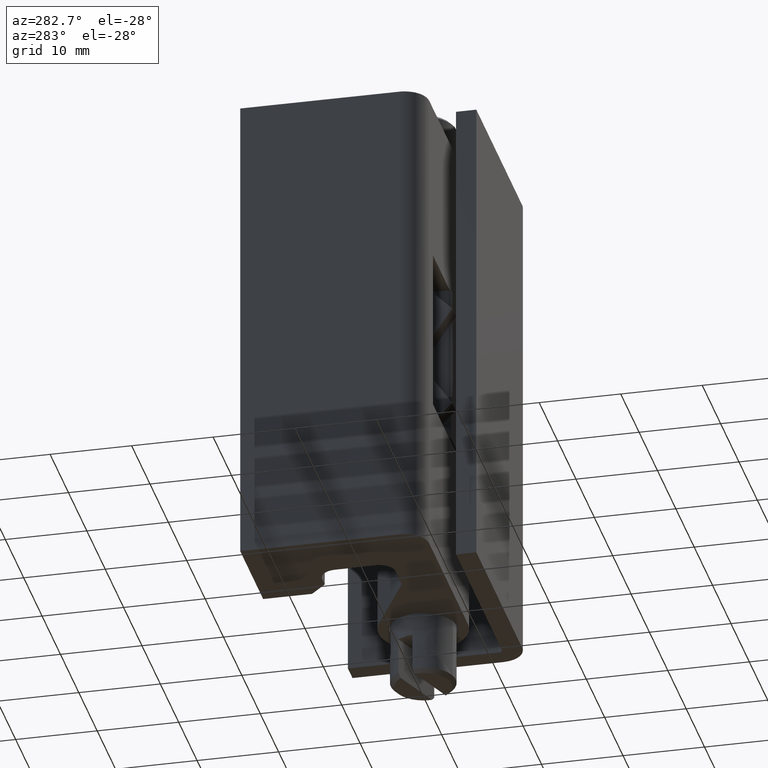
[diagram: clean part render]
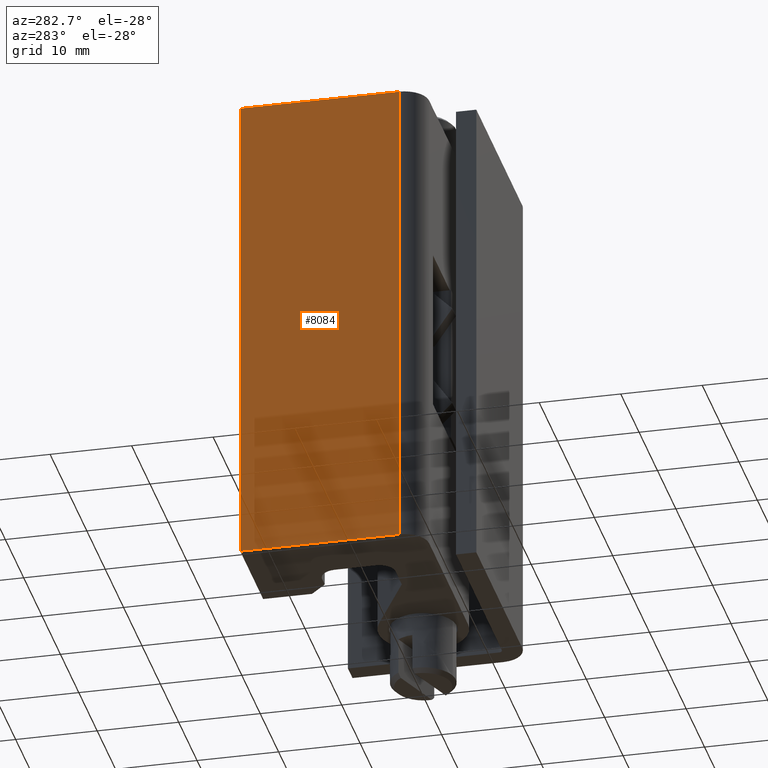
[diagram: same view with one face highlighted and labeled with its STEP entity id]
A machine part, auxiliary view. The second image highlights one B-rep face of the part: STEP entity #8084.
In plain terms, the highlighted face is a freeform B-spline surface patch.
Its self-contained STEP definition (entity closure, byte-faithful):
#7660=CARTESIAN_POINT('',(-24.200001912377800,-2.500000118743740,7.799999607540630));
#7661=VERTEX_POINT('',#7660);
#7675=CARTESIAN_POINT('',(-24.200001912377751,17.000000807456651,7.799999607540630));
#7676=VERTEX_POINT('',#7675);
#7677=CARTESIAN_POINT('',(-24.200001912377800,-2.500000118743740,7.799999607540630));
#7678=CARTESIAN_POINT('',(-24.200001912377751,17.000000807456651,7.799999607540630));
#7679=QUASI_UNIFORM_CURVE('',1,(#7677,#7678),.UNSPECIFIED.,.F.,.U.);
#7680=EDGE_CURVE('',#7661,#7676,#7679,.T.);
#7866=CARTESIAN_POINT('',(-24.200001912377751,17.000000807456651,67.800002457387706));
#7867=VERTEX_POINT('',#7866);
#7873=CARTESIAN_POINT('',(-24.200001912377800,-2.500000118743740,67.800002457387706));
#7874=VERTEX_POINT('',#7873);
#7875=CARTESIAN_POINT('',(-24.200001912377800,-2.500000118743740,67.800002457387706));
#7876=CARTESIAN_POINT('',(-24.200001912377751,17.000000807456651,67.800002457387706));
#7877=QUASI_UNIFORM_CURVE('',1,(#7875,#7876),.UNSPECIFIED.,.F.,.U.);
#7878=EDGE_CURVE('',#7874,#7867,#7877,.T.);
#8065=CARTESIAN_POINT('',(-24.200001912377751,-3.474025057544966,4.802999581482419));
#8066=CARTESIAN_POINT('',(-24.200001912377751,-3.474025057544966,70.797004092771417));
#8067=CARTESIAN_POINT('',(-24.200001912377751,17.974024874539900,4.802999581482419));
#8068=CARTESIAN_POINT('',(-24.200001912377751,17.974024874539900,70.797004092771417));
#8069=B_SPLINE_SURFACE_WITH_KNOTS('',1,1,((#8065,#8067),(#8066,#8068)),.UNSPECIFIED.,.F.,.F.,.U.,(2,2),(2,2),(0.0,65.994004511288992),(0.0,21.448049932084871),.UNSPECIFIED.);
#8070=ORIENTED_EDGE('',*,*,#7680,.F.);
#8071=CARTESIAN_POINT('',(-24.200001912377800,-2.500000118743740,67.800002457387706));
#8072=CARTESIAN_POINT('',(-24.200001912377800,-2.500000118743740,7.799999607540630));
#8073=QUASI_UNIFORM_CURVE('',1,(#8071,#8072),.UNSPECIFIED.,.F.,.U.);
#8074=EDGE_CURVE('',#7874,#7661,#8073,.T.);
#8075=ORIENTED_EDGE('',*,*,#8074,.F.);
#8076=ORIENTED_EDGE('',*,*,#7878,.T.);
#8077=CARTESIAN_POINT('',(-24.200001912377751,17.000000807456651,67.800002457387706));
#8078=CARTESIAN_POINT('',(-24.200001912377751,17.000000807456651,7.799999607540630));
#8079=QUASI_UNIFORM_CURVE('',1,(#8077,#8078),.UNSPECIFIED.,.F.,.U.);
#8080=EDGE_CURVE('',#7867,#7676,#8079,.T.);
#8081=ORIENTED_EDGE('',*,*,#8080,.T.);
#8082=EDGE_LOOP('',(#8070,#8075,#8076,#8081));
#8083=FACE_OUTER_BOUND('',#8082,.T.);
#8084=ADVANCED_FACE('',(#8083),#8069,.T.);